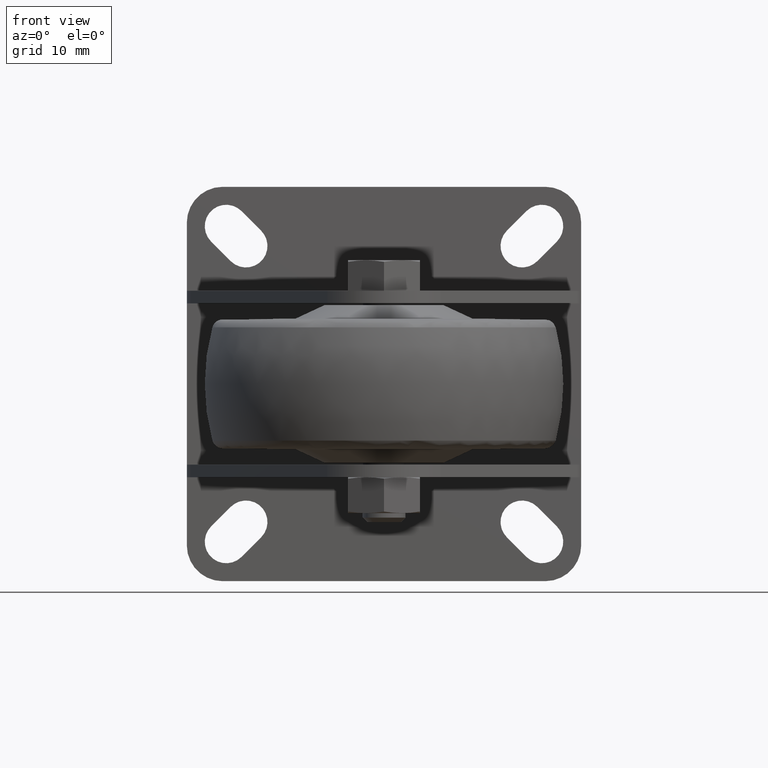
[diagram: clean part render]
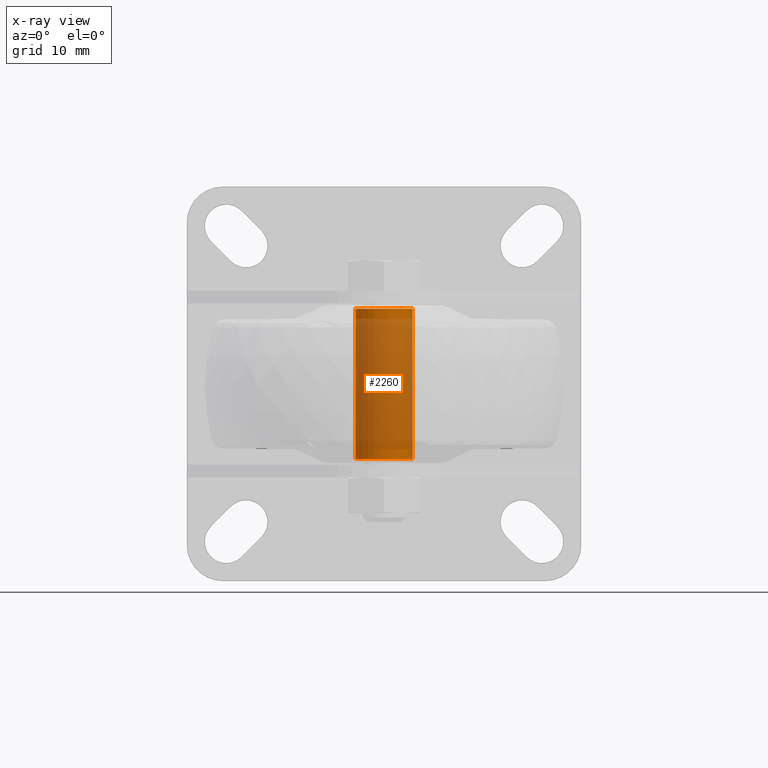
[diagram: x-ray — body ghosted, one internal face saturated and labeled with its STEP entity id]
A machine part, front view, then the same camera in x-ray: the body is ghosted and one INTERNAL B-rep face — a face not visible from any outside direction — is saturated and labeled: STEP entity #2260.
In plain terms, the highlighted cylindrical surface (bore or boss wall) has radius 4 mm, axis along (0, 0, -1).
Its self-contained STEP definition (entity closure, byte-faithful):
#352=FACE_OUTER_BOUND('',#514,.T.);
#514=EDGE_LOOP('',(#1898,#1899,#1900,#1901));
#691=LINE('',#4010,#815);
#815=VECTOR('',#3235,4.);
#914=CIRCLE('',#2671,4.);
#915=CIRCLE('',#2673,4.);
#1114=VERTEX_POINT('',#4005);
#1115=VERTEX_POINT('',#4008);
#1383=EDGE_CURVE('',#1114,#1114,#914,.T.);
#1384=EDGE_CURVE('',#1115,#1115,#915,.T.);
#1385=EDGE_CURVE('',#1115,#1114,#691,.T.);
#1898=ORIENTED_EDGE('',*,*,#1384,.T.);
#1899=ORIENTED_EDGE('',*,*,#1385,.T.);
#1900=ORIENTED_EDGE('',*,*,#1383,.F.);
#1901=ORIENTED_EDGE('',*,*,#1385,.F.);
#2171=CYLINDRICAL_SURFACE('',#2672,4.);
#2260=ADVANCED_FACE('',(#352),#2171,.F.);
#2671=AXIS2_PLACEMENT_3D('',#4006,#3229,#3230);
#2672=AXIS2_PLACEMENT_3D('',#4007,#3231,#3232);
#2673=AXIS2_PLACEMENT_3D('',#4009,#3233,#3234);
#3229=DIRECTION('center_axis',(1.,0.,0.));
#3230=DIRECTION('ref_axis',(0.,0.,-1.));
#3231=DIRECTION('center_axis',(-1.,0.,0.));
#3232=DIRECTION('ref_axis',(0.,0.,-1.));
#3233=DIRECTION('center_axis',(1.,0.,0.));
#3234=DIRECTION('ref_axis',(0.,0.,-1.));
#3235=DIRECTION('',(-1.,0.,0.));
#4005=CARTESIAN_POINT('',(0.,4.89858719658941E-16,4.));
#4006=CARTESIAN_POINT('Origin',(0.,0.,0.));
#4007=CARTESIAN_POINT('Origin',(21.,0.,0.));
#4008=CARTESIAN_POINT('',(21.,4.89858719658941E-16,4.));
#4009=CARTESIAN_POINT('Origin',(21.,0.,0.));
#4010=CARTESIAN_POINT('',(21.,4.89858719658941E-16,4.));